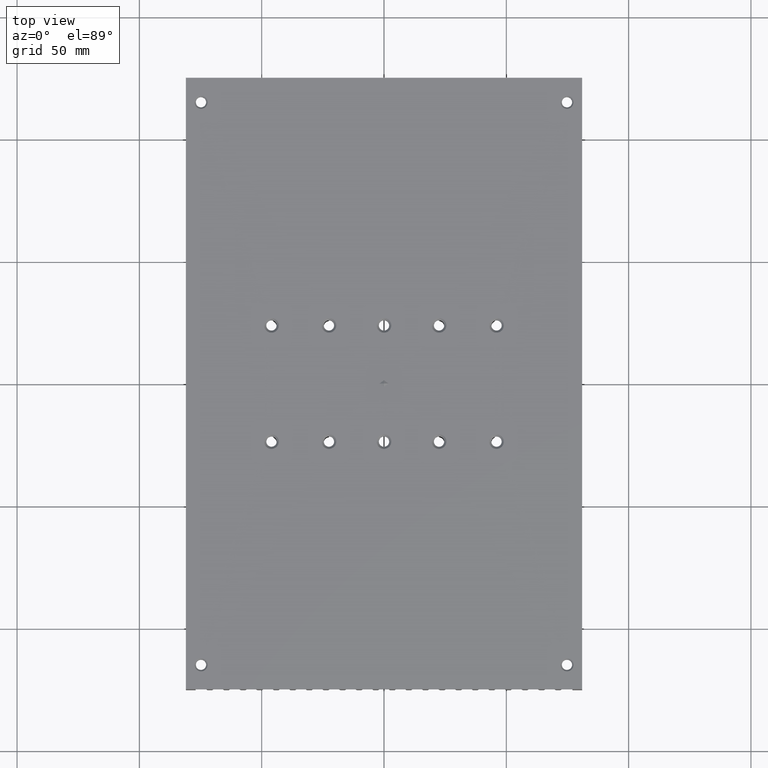
[diagram: clean part render]
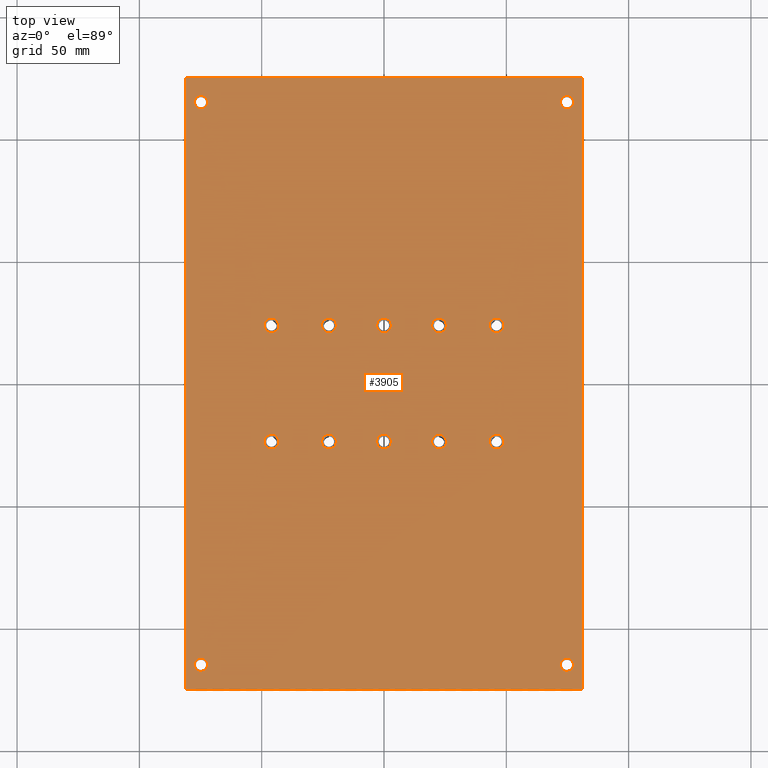
[diagram: same view with one face highlighted and labeled with its STEP entity id]
A machine part, top view. The second image highlights one B-rep face of the part: STEP entity #3905.
In plain terms, the highlighted planar face has unit normal (0, 0, 1).
Its self-contained STEP definition (entity closure, byte-faithful):
#146=CARTESIAN_POINT('',(-77.499999999868407,114.99999999843658,2.844947E-016));
#147=VERTEX_POINT('',#146);
#155=CARTESIAN_POINT('',(-72.099999999868373,114.99999999843658,2.220446E-015));
#156=VERTEX_POINT('',#155);
#163=CARTESIAN_POINT('',(-74.79999999986839,114.99999999843658,2.220446E-015));
#164=DIRECTION('',(0.0,0.0,-1.0));
#165=DIRECTION('',(-1.0,0.0,0.0));
#166=AXIS2_PLACEMENT_3D('',#163,#164,#165);
#167=CIRCLE('',#166,2.700000000000021);
#168=EDGE_CURVE('',#147,#156,#167,.T.);
#254=CARTESIAN_POINT('',(72.100000000133775,114.99999999843658,2.844947E-016));
#255=VERTEX_POINT('',#254);
#263=CARTESIAN_POINT('',(77.500000000133809,114.99999999843658,2.220446E-015));
#264=VERTEX_POINT('',#263);
#271=CARTESIAN_POINT('',(74.800000000133792,114.99999999843658,2.220446E-015));
#272=DIRECTION('',(0.0,0.0,-1.0));
#273=DIRECTION('',(-1.0,0.0,0.0));
#274=AXIS2_PLACEMENT_3D('',#271,#272,#273);
#275=CIRCLE('',#274,2.700000000000021);
#276=EDGE_CURVE('',#255,#264,#275,.T.);
#362=CARTESIAN_POINT('',(-77.499999999868464,-115.00000000156365,5.471318E-014));
#363=VERTEX_POINT('',#362);
#371=CARTESIAN_POINT('',(-72.099999999868317,-115.00000000156365,5.329071E-014));
#372=VERTEX_POINT('',#371);
#379=CARTESIAN_POINT('',(-74.79999999986839,-115.00000000156365,5.329071E-014));
#380=DIRECTION('',(0.0,0.0,-1.0));
#381=DIRECTION('',(-1.0,0.0,0.0));
#382=AXIS2_PLACEMENT_3D('',#379,#380,#381);
#383=CIRCLE('',#382,2.700000000000072);
#384=EDGE_CURVE('',#363,#372,#383,.T.);
#396=CARTESIAN_POINT('',(-48.999999999869111,23.749999998436806,-1.869746E-014));
#397=VERTEX_POINT('',#396);
#413=CARTESIAN_POINT('',(-42.999999999869068,23.749999998436806,2.314815E-014));
#414=VERTEX_POINT('',#413);
#421=CARTESIAN_POINT('',(-45.999999999869111,23.749999998436806,2.248202E-014));
#422=DIRECTION('',(0.0,0.0,-1.0));
#423=DIRECTION('',(-1.0,0.0,0.0));
#424=AXIS2_PLACEMENT_3D('',#421,#422,#423);
#425=CIRCLE('',#424,3.000000000000041);
#426=EDGE_CURVE('',#397,#414,#425,.T.);
#503=CARTESIAN_POINT('',(-2.999999999869111,23.749999998436806,-1.869746E-014));
#504=VERTEX_POINT('',#503);
#520=CARTESIAN_POINT('',(3.00000000013093,23.749999998436806,2.253753E-014));
#521=VERTEX_POINT('',#520);
#528=CARTESIAN_POINT('',(1.308891E-010,23.749999998436806,2.248202E-014));
#529=DIRECTION('',(0.0,0.0,-1.0));
#530=DIRECTION('',(-1.0,0.0,0.0));
#531=AXIS2_PLACEMENT_3D('',#528,#529,#530);
#532=CIRCLE('',#531,3.000000000000041);
#533=EDGE_CURVE('',#504,#521,#532,.T.);
#634=CARTESIAN_POINT('',(42.999999999979913,23.750000000117097,-1.061831E-014));
#635=VERTEX_POINT('',#634);
#643=CARTESIAN_POINT('',(48.999999999979948,23.750000000117097,2.364775E-014));
#644=VERTEX_POINT('',#643);
#651=CARTESIAN_POINT('',(45.999999999979913,23.750000000117097,2.248202E-014));
#652=DIRECTION('',(0.0,0.0,-1.0));
#653=DIRECTION('',(-1.0,0.0,0.0));
#654=AXIS2_PLACEMENT_3D('',#651,#652,#653);
#655=CIRCLE('',#654,3.000000000000033);
#656=EDGE_CURVE('',#635,#644,#655,.T.);
#741=CARTESIAN_POINT('',(43.000000000130889,-23.750000001563194,-1.869746E-014));
#742=VERTEX_POINT('',#741);
#750=CARTESIAN_POINT('',(49.000000000130939,-23.750000001563194,3.202993E-014));
#751=VERTEX_POINT('',#750);
#758=CARTESIAN_POINT('',(46.000000000130889,-23.750000001563194,3.302913E-014));
#759=DIRECTION('',(0.0,0.0,-1.0));
#760=DIRECTION('',(-1.0,0.0,0.0));
#761=AXIS2_PLACEMENT_3D('',#758,#759,#760);
#762=CIRCLE('',#761,3.000000000000052);
#763=EDGE_CURVE('',#742,#751,#762,.T.);
#775=CARTESIAN_POINT('',(-2.999999999869111,-23.750000001563194,-1.869746E-014));
#776=VERTEX_POINT('',#775);
#792=CARTESIAN_POINT('',(3.000000000130941,-23.750000001563194,3.291811E-014));
#793=VERTEX_POINT('',#792);
#800=CARTESIAN_POINT('',(1.308891E-010,-23.750000001563194,3.302913E-014));
#801=DIRECTION('',(0.0,0.0,-1.0));
#802=DIRECTION('',(-1.0,0.0,0.0));
#803=AXIS2_PLACEMENT_3D('',#800,#801,#802);
#804=CIRCLE('',#803,3.000000000000052);
#805=EDGE_CURVE('',#776,#793,#804,.T.);
#817=CARTESIAN_POINT('',(-48.999999999869111,-23.750000001563194,-1.869746E-014));
#818=VERTEX_POINT('',#817);
#834=CARTESIAN_POINT('',(-42.999999999869061,-23.750000001563194,3.202993E-014));
#835=VERTEX_POINT('',#834);
#842=CARTESIAN_POINT('',(-45.999999999869111,-23.750000001563194,3.302913E-014));
#843=DIRECTION('',(0.0,0.0,-1.0));
#844=DIRECTION('',(-1.0,0.0,0.0));
#845=AXIS2_PLACEMENT_3D('',#842,#843,#844);
#846=CIRCLE('',#845,3.000000000000052);
#847=EDGE_CURVE('',#818,#835,#846,.T.);
#998=CARTESIAN_POINT('',(72.100000000133718,-115.00000000156365,5.471318E-014));
#999=VERTEX_POINT('',#998);
#1007=CARTESIAN_POINT('',(77.500000000133866,-115.00000000156365,5.329071E-014));
#1008=VERTEX_POINT('',#1007);
#1015=CARTESIAN_POINT('',(74.800000000133792,-115.00000000156365,5.329071E-014));
#1016=DIRECTION('',(0.0,0.0,-1.0));
#1017=DIRECTION('',(-1.0,0.0,0.0));
#1018=AXIS2_PLACEMENT_3D('',#1015,#1016,#1017);
#1019=CIRCLE('',#1018,2.700000000000072);
#1020=EDGE_CURVE('',#999,#1008,#1019,.T.);
#1200=CARTESIAN_POINT('',(19.49999999997997,23.750000000117126,2.187139E-014));
#1201=VERTEX_POINT('',#1200);
#1217=CARTESIAN_POINT('',(25.499999999979963,23.750000000117126,-1.637579E-014));
#1218=VERTEX_POINT('',#1217);
#1225=CARTESIAN_POINT('',(22.499999999979991,23.750000000117126,2.248202E-014));
#1226=DIRECTION('',(0.0,0.0,-1.0));
#1227=DIRECTION('',(-1.0,0.0,0.0));
#1228=AXIS2_PLACEMENT_3D('',#1225,#1226,#1227);
#1229=CIRCLE('',#1228,3.000000000000022);
#1230=EDGE_CURVE('',#1201,#1218,#1229,.T.);
#1327=CARTESIAN_POINT('',(-25.50000000002003,23.750000000117126,2.187139E-014));
#1328=VERTEX_POINT('',#1327);
#1344=CARTESIAN_POINT('',(-19.500000000020037,23.750000000117126,-1.637579E-014));
#1345=VERTEX_POINT('',#1344);
#1352=CARTESIAN_POINT('',(-22.500000000020009,23.750000000117126,2.248202E-014));
#1353=DIRECTION('',(0.0,0.0,-1.0));
#1354=DIRECTION('',(-1.0,0.0,0.0));
#1355=AXIS2_PLACEMENT_3D('',#1352,#1353,#1354);
#1356=CIRCLE('',#1355,3.000000000000022);
#1357=EDGE_CURVE('',#1328,#1345,#1356,.T.);
#1454=CARTESIAN_POINT('',(19.499999999979959,-23.749999999882874,3.241851E-014));
#1455=VERTEX_POINT('',#1454);
#1471=CARTESIAN_POINT('',(25.499999999979963,-23.749999999882874,-1.637579E-014));
#1472=VERTEX_POINT('',#1471);
#1479=CARTESIAN_POINT('',(22.499999999979991,-23.749999999882874,3.302913E-014));
#1480=DIRECTION('',(0.0,0.0,-1.0));
#1481=DIRECTION('',(-1.0,0.0,0.0));
#1482=AXIS2_PLACEMENT_3D('',#1479,#1480,#1481);
#1483=CIRCLE('',#1482,3.000000000000033);
#1484=EDGE_CURVE('',#1455,#1472,#1483,.T.);
#1581=CARTESIAN_POINT('',(-25.500000000020041,-23.749999999882874,3.241851E-014));
#1582=VERTEX_POINT('',#1581);
#1598=CARTESIAN_POINT('',(-19.500000000020037,-23.749999999882874,-1.637579E-014));
#1599=VERTEX_POINT('',#1598);
#1606=CARTESIAN_POINT('',(-22.500000000020009,-23.749999999882874,3.302913E-014));
#1607=DIRECTION('',(0.0,0.0,-1.0));
#1608=DIRECTION('',(-1.0,0.0,0.0));
#1609=AXIS2_PLACEMENT_3D('',#1606,#1607,#1608);
#1610=CIRCLE('',#1609,3.000000000000033);
#1611=EDGE_CURVE('',#1582,#1599,#1610,.T.);
#1793=CARTESIAN_POINT('',(-22.500000000020009,-23.749999999882874,3.302913E-014));
#1794=DIRECTION('',(0.0,0.0,-1.0));
#1795=DIRECTION('',(-1.0,0.0,0.0));
#1796=AXIS2_PLACEMENT_3D('',#1793,#1794,#1795);
#1797=CIRCLE('',#1796,3.000000000000033);
#1798=EDGE_CURVE('',#1599,#1582,#1797,.T.);
#1898=CARTESIAN_POINT('',(22.499999999979991,-23.749999999882874,3.302913E-014));
#1899=DIRECTION('',(0.0,0.0,-1.0));
#1900=DIRECTION('',(-1.0,0.0,0.0));
#1901=AXIS2_PLACEMENT_3D('',#1898,#1899,#1900);
#1902=CIRCLE('',#1901,3.000000000000033);
#1903=EDGE_CURVE('',#1472,#1455,#1902,.T.);
#2003=CARTESIAN_POINT('',(-22.500000000020009,23.750000000117126,2.248202E-014));
#2004=DIRECTION('',(0.0,0.0,-1.0));
#2005=DIRECTION('',(-1.0,0.0,0.0));
#2006=AXIS2_PLACEMENT_3D('',#2003,#2004,#2005);
#2007=CIRCLE('',#2006,3.000000000000022);
#2008=EDGE_CURVE('',#1345,#1328,#2007,.T.);
#2108=CARTESIAN_POINT('',(22.499999999979991,23.750000000117126,2.248202E-014));
#2109=DIRECTION('',(0.0,0.0,-1.0));
#2110=DIRECTION('',(-1.0,0.0,0.0));
#2111=AXIS2_PLACEMENT_3D('',#2108,#2109,#2110);
#2112=CIRCLE('',#2111,3.000000000000022);
#2113=EDGE_CURVE('',#1218,#1201,#2112,.T.);
#3607=CARTESIAN_POINT('',(1.308891E-010,-1.359709980453403,3.690629E-014));
#3608=VERTEX_POINT('',#3607);
#3618=CARTESIAN_POINT('',(1.836380751045365,-1.563180E-009,2.664535E-014));
#3619=VERTEX_POINT('',#3618);
#3620=CARTESIAN_POINT('',(18.000000000130889,-23.75000000156319,3.197442E-014));
#3621=DIRECTION('',(0.0,0.0,-1.0));
#3622=DIRECTION('',(-1.0,0.0,0.0));
#3623=AXIS2_PLACEMENT_3D('',#3620,#3621,#3622);
#3624=CIRCLE('',#3623,28.728471717608102);
#3625=EDGE_CURVE('',#3608,#3619,#3624,.T.);
#3643=CARTESIAN_POINT('',(-1.836380750783587,-1.563180E-009,2.664535E-014));
#3644=VERTEX_POINT('',#3643);
#3652=CARTESIAN_POINT('',(-17.999999999869111,-23.75000000156319,3.197442E-014));
#3653=DIRECTION('',(0.0,0.0,-1.0));
#3654=DIRECTION('',(-1.0,0.0,0.0));
#3655=AXIS2_PLACEMENT_3D('',#3652,#3653,#3654);
#3656=CIRCLE('',#3655,28.728471717608102);
#3657=EDGE_CURVE('',#3644,#3608,#3656,.T.);
#3708=CARTESIAN_POINT('',(1.308891E-010,1.359709977327043,1.638441E-014));
#3709=VERTEX_POINT('',#3708);
#3710=CARTESIAN_POINT('',(18.000000000130889,23.74999999843681,2.131628E-014));
#3711=DIRECTION('',(0.0,0.0,1.0));
#3712=DIRECTION('',(-1.0,0.0,0.0));
#3713=AXIS2_PLACEMENT_3D('',#3710,#3711,#3712);
#3714=CIRCLE('',#3713,28.728471717608084);
#3715=EDGE_CURVE('',#3709,#3619,#3714,.T.);
#3734=CARTESIAN_POINT('',(-17.999999999869111,23.74999999843681,2.131628E-014));
#3735=DIRECTION('',(0.0,0.0,-1.0));
#3736=DIRECTION('',(-1.0,0.0,0.0));
#3737=AXIS2_PLACEMENT_3D('',#3734,#3735,#3736);
#3738=CIRCLE('',#3737,28.728471717608084);
#3739=EDGE_CURVE('',#3709,#3644,#3738,.T.);
#3744=CARTESIAN_POINT('',(-81.000000000000298,125.0,0.0));
#3745=DIRECTION('',(0.0,0.0,1.0));
#3746=DIRECTION('',(1.0,0.0,0.0));
#3747=AXIS2_PLACEMENT_3D('',#3744,#3745,#3746);
#3748=PLANE('',#3747);
#3749=CARTESIAN_POINT('',(-81.000000000000298,-125.0,-5.506706E-014));
#3750=VERTEX_POINT('',#3749);
#3751=CARTESIAN_POINT('',(81.000000000000142,-125.0,-5.506706E-014));
#3752=VERTEX_POINT('',#3751);
#3753=CARTESIAN_POINT('',(-81.000000000000298,-125.0,-5.506706E-014));
#3754=DIRECTION('',(1.0,0.0,0.0));
#3755=VECTOR('',#3754,162.00000000000045);
#3756=LINE('',#3753,#3755);
#3757=EDGE_CURVE('',#3750,#3752,#3756,.T.);
#3758=ORIENTED_EDGE('',*,*,#3757,.T.);
#3759=CARTESIAN_POINT('',(81.000000000000142,125.0,0.0));
#3760=VERTEX_POINT('',#3759);
#3761=CARTESIAN_POINT('',(81.000000000000142,125.0,0.0));
#3762=DIRECTION('',(0.0,-1.0,0.0));
#3763=VECTOR('',#3762,250.0);
#3764=LINE('',#3761,#3763);
#3765=EDGE_CURVE('',#3760,#3752,#3764,.T.);
#3766=ORIENTED_EDGE('',*,*,#3765,.F.);
#3767=CARTESIAN_POINT('',(-81.000000000000298,125.0,0.0));
#3768=VERTEX_POINT('',#3767);
#3769=CARTESIAN_POINT('',(-81.000000000000298,125.0,0.0));
#3770=DIRECTION('',(1.0,0.0,0.0));
#3771=VECTOR('',#3770,162.00000000000045);
#3772=LINE('',#3769,#3771);
#3773=EDGE_CURVE('',#3768,#3760,#3772,.T.);
#3774=ORIENTED_EDGE('',*,*,#3773,.F.);
#3775=CARTESIAN_POINT('',(-81.000000000000298,125.0,0.0));
#3776=DIRECTION('',(0.0,-1.0,0.0));
#3777=VECTOR('',#3776,250.0);
#3778=LINE('',#3775,#3777);
#3779=EDGE_CURVE('',#3768,#3750,#3778,.T.);
#3780=ORIENTED_EDGE('',*,*,#3779,.T.);
#3781=EDGE_LOOP('',(#3758,#3766,#3774,#3780));
#3782=FACE_OUTER_BOUND('',#3781,.T.);
#3783=ORIENTED_EDGE('',*,*,#1798,.T.);
#3784=ORIENTED_EDGE('',*,*,#1611,.T.);
#3785=EDGE_LOOP('',(#3783,#3784));
#3786=FACE_BOUND('',#3785,.T.);
#3787=ORIENTED_EDGE('',*,*,#1903,.T.);
#3788=ORIENTED_EDGE('',*,*,#1484,.T.);
#3789=EDGE_LOOP('',(#3787,#3788));
#3790=FACE_BOUND('',#3789,.T.);
#3791=ORIENTED_EDGE('',*,*,#2008,.T.);
#3792=ORIENTED_EDGE('',*,*,#1357,.T.);
#3793=EDGE_LOOP('',(#3791,#3792));
#3794=FACE_BOUND('',#3793,.T.);
#3795=ORIENTED_EDGE('',*,*,#2113,.T.);
#3796=ORIENTED_EDGE('',*,*,#1230,.T.);
#3797=EDGE_LOOP('',(#3795,#3796));
#3798=FACE_BOUND('',#3797,.T.);
#3799=ORIENTED_EDGE('',*,*,#3715,.T.);
#3800=ORIENTED_EDGE('',*,*,#3625,.F.);
#3801=ORIENTED_EDGE('',*,*,#3657,.F.);
#3802=ORIENTED_EDGE('',*,*,#3739,.F.);
#3803=EDGE_LOOP('',(#3799,#3800,#3801,#3802));
#3804=FACE_BOUND('',#3803,.T.);
#3805=ORIENTED_EDGE('',*,*,#656,.T.);
#3806=CARTESIAN_POINT('',(45.999999999979913,23.750000000117097,2.248202E-014));
#3807=DIRECTION('',(0.0,0.0,-1.0));
#3808=DIRECTION('',(-1.0,0.0,0.0));
#3809=AXIS2_PLACEMENT_3D('',#3806,#3807,#3808);
#3810=CIRCLE('',#3809,3.000000000000033);
#3811=EDGE_CURVE('',#644,#635,#3810,.T.);
#3812=ORIENTED_EDGE('',*,*,#3811,.T.);
#3813=EDGE_LOOP('',(#3805,#3812));
#3814=FACE_BOUND('',#3813,.T.);
#3815=ORIENTED_EDGE('',*,*,#426,.T.);
#3816=CARTESIAN_POINT('',(-45.999999999869111,23.749999998436806,2.248202E-014));
#3817=DIRECTION('',(0.0,0.0,-1.0));
#3818=DIRECTION('',(-1.0,0.0,0.0));
#3819=AXIS2_PLACEMENT_3D('',#3816,#3817,#3818);
#3820=CIRCLE('',#3819,3.000000000000041);
#3821=EDGE_CURVE('',#414,#397,#3820,.T.);
#3822=ORIENTED_EDGE('',*,*,#3821,.T.);
#3823=EDGE_LOOP('',(#3815,#3822));
#3824=FACE_BOUND('',#3823,.T.);
#3825=ORIENTED_EDGE('',*,*,#533,.T.);
#3826=CARTESIAN_POINT('',(1.308891E-010,23.749999998436806,2.248202E-014));
#3827=DIRECTION('',(0.0,0.0,-1.0));
#3828=DIRECTION('',(-1.0,0.0,0.0));
#3829=AXIS2_PLACEMENT_3D('',#3826,#3827,#3828);
#3830=CIRCLE('',#3829,3.000000000000041);
#3831=EDGE_CURVE('',#521,#504,#3830,.T.);
#3832=ORIENTED_EDGE('',*,*,#3831,.T.);
#3833=EDGE_LOOP('',(#3825,#3832));
#3834=FACE_BOUND('',#3833,.T.);
#3835=CARTESIAN_POINT('',(-74.79999999986839,114.99999999843658,2.220446E-015));
#3836=DIRECTION('',(0.0,0.0,-1.0));
#3837=DIRECTION('',(-1.0,0.0,0.0));
#3838=AXIS2_PLACEMENT_3D('',#3835,#3836,#3837);
#3839=CIRCLE('',#3838,2.700000000000021);
#3840=EDGE_CURVE('',#156,#147,#3839,.T.);
#3841=ORIENTED_EDGE('',*,*,#3840,.T.);
#3842=ORIENTED_EDGE('',*,*,#168,.T.);
#3843=EDGE_LOOP('',(#3841,#3842));
#3844=FACE_BOUND('',#3843,.T.);
#3845=CARTESIAN_POINT('',(74.800000000133792,114.99999999843658,2.220446E-015));
#3846=DIRECTION('',(0.0,0.0,-1.0));
#3847=DIRECTION('',(-1.0,0.0,0.0));
#3848=AXIS2_PLACEMENT_3D('',#3845,#3846,#3847);
#3849=CIRCLE('',#3848,2.700000000000021);
#3850=EDGE_CURVE('',#264,#255,#3849,.T.);
#3851=ORIENTED_EDGE('',*,*,#3850,.T.);
#3852=ORIENTED_EDGE('',*,*,#276,.T.);
#3853=EDGE_LOOP('',(#3851,#3852));
#3854=FACE_BOUND('',#3853,.T.);
#3855=CARTESIAN_POINT('',(-74.79999999986839,-115.00000000156365,5.329071E-014));
#3856=DIRECTION('',(0.0,0.0,-1.0));
#3857=DIRECTION('',(-1.0,0.0,0.0));
#3858=AXIS2_PLACEMENT_3D('',#3855,#3856,#3857);
#3859=CIRCLE('',#3858,2.700000000000072);
#3860=EDGE_CURVE('',#372,#363,#3859,.T.);
#3861=ORIENTED_EDGE('',*,*,#3860,.T.);
#3862=ORIENTED_EDGE('',*,*,#384,.T.);
#3863=EDGE_LOOP('',(#3861,#3862));
#3864=FACE_BOUND('',#3863,.T.);
#3865=CARTESIAN_POINT('',(74.800000000133792,-115.00000000156365,5.329071E-014));
#3866=DIRECTION('',(0.0,0.0,-1.0));
#3867=DIRECTION('',(-1.0,0.0,0.0));
#3868=AXIS2_PLACEMENT_3D('',#3865,#3866,#3867);
#3869=CIRCLE('',#3868,2.700000000000072);
#3870=EDGE_CURVE('',#1008,#999,#3869,.T.);
#3871=ORIENTED_EDGE('',*,*,#3870,.T.);
#3872=ORIENTED_EDGE('',*,*,#1020,.T.);
#3873=EDGE_LOOP('',(#3871,#3872));
#3874=FACE_BOUND('',#3873,.T.);
#3875=ORIENTED_EDGE('',*,*,#763,.T.);
#3876=CARTESIAN_POINT('',(46.000000000130889,-23.750000001563194,3.302913E-014));
#3877=DIRECTION('',(0.0,0.0,-1.0));
#3878=DIRECTION('',(-1.0,0.0,0.0));
#3879=AXIS2_PLACEMENT_3D('',#3876,#3877,#3878);
#3880=CIRCLE('',#3879,3.000000000000052);
#3881=EDGE_CURVE('',#751,#742,#3880,.T.);
#3882=ORIENTED_EDGE('',*,*,#3881,.T.);
#3883=EDGE_LOOP('',(#3875,#3882));
#3884=FACE_BOUND('',#3883,.T.);
#3885=ORIENTED_EDGE('',*,*,#805,.T.);
#3886=CARTESIAN_POINT('',(1.308891E-010,-23.750000001563194,3.302913E-014));
#3887=DIRECTION('',(0.0,0.0,-1.0));
#3888=DIRECTION('',(-1.0,0.0,0.0));
#3889=AXIS2_PLACEMENT_3D('',#3886,#3887,#3888);
#3890=CIRCLE('',#3889,3.000000000000052);
#3891=EDGE_CURVE('',#793,#776,#3890,.T.);
#3892=ORIENTED_EDGE('',*,*,#3891,.T.);
#3893=EDGE_LOOP('',(#3885,#3892));
#3894=FACE_BOUND('',#3893,.T.);
#3895=ORIENTED_EDGE('',*,*,#847,.T.);
#3896=CARTESIAN_POINT('',(-45.999999999869111,-23.750000001563194,3.302913E-014));
#3897=DIRECTION('',(0.0,0.0,-1.0));
#3898=DIRECTION('',(-1.0,0.0,0.0));
#3899=AXIS2_PLACEMENT_3D('',#3896,#3897,#3898);
#3900=CIRCLE('',#3899,3.000000000000052);
#3901=EDGE_CURVE('',#835,#818,#3900,.T.);
#3902=ORIENTED_EDGE('',*,*,#3901,.T.);
#3903=EDGE_LOOP('',(#3895,#3902));
#3904=FACE_BOUND('',#3903,.T.);
#3905=ADVANCED_FACE('',(#3782,#3786,#3790,#3794,#3798,#3804,#3814,#3824,#3834,#3844,#3854,#3864,#3874,#3884,#3894,#3904),#3748,.T.);